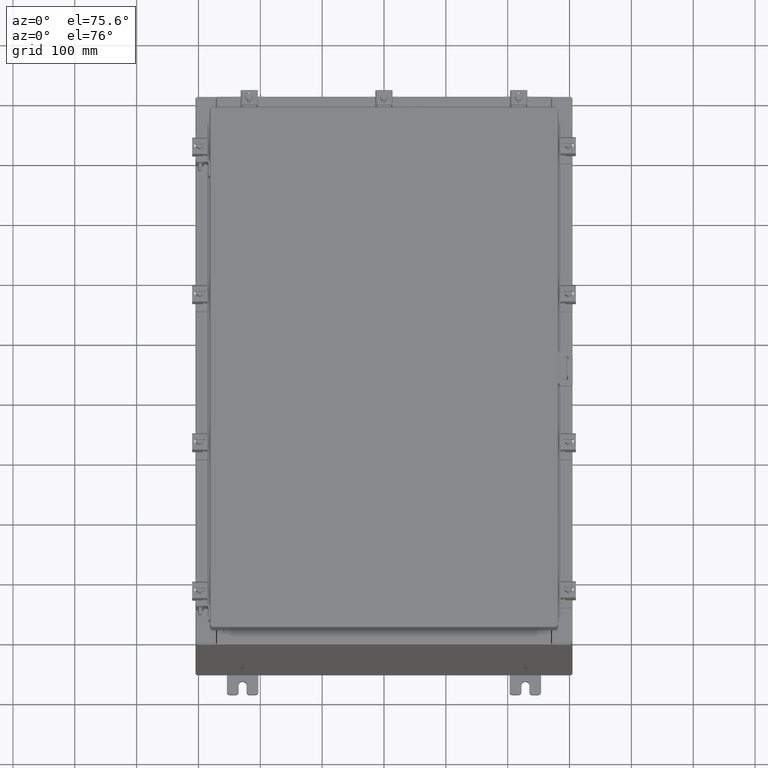
[diagram: clean part render]
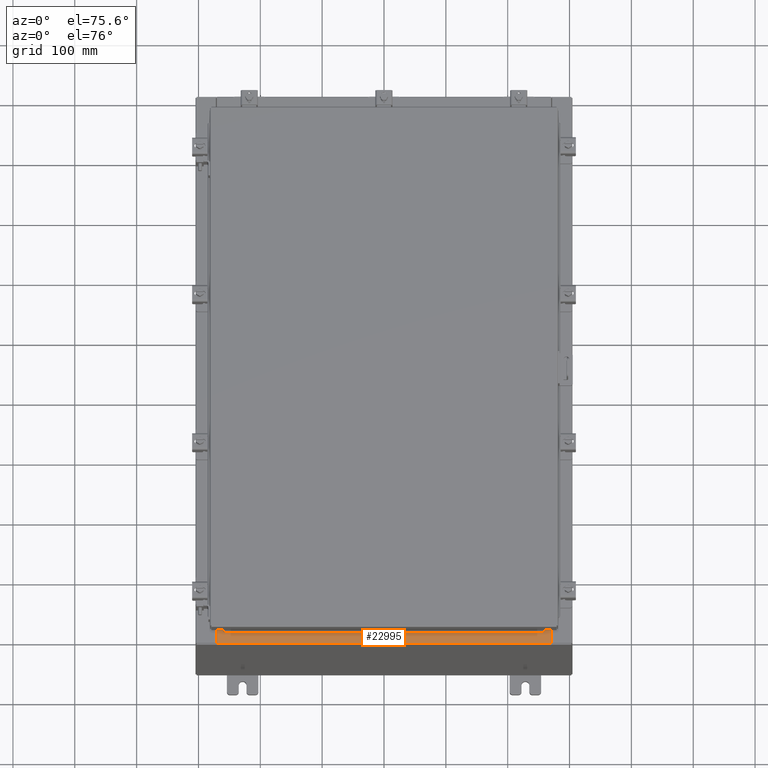
[diagram: same view with one face highlighted and labeled with its STEP entity id]
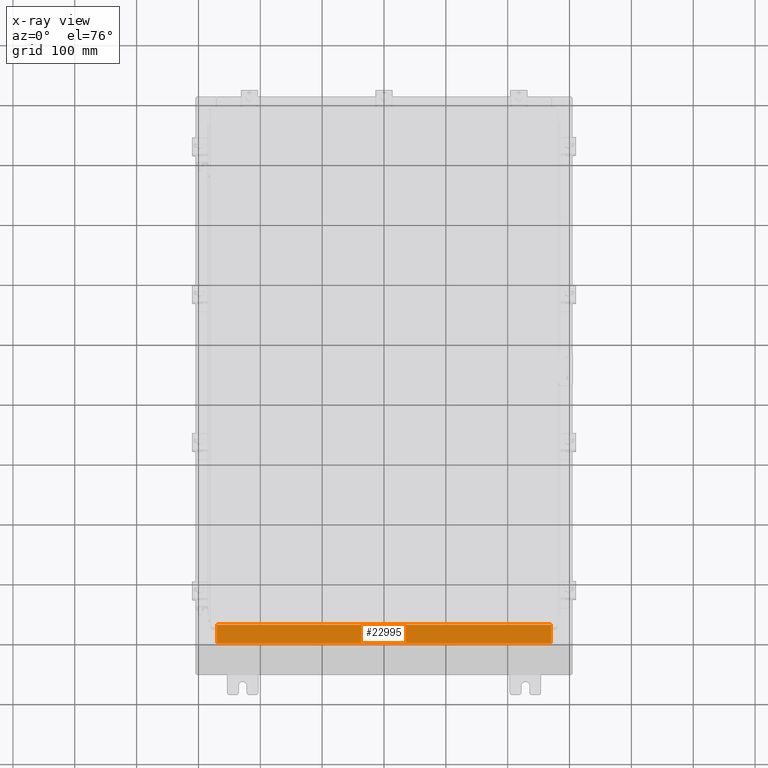
[diagram: x-ray of the same camera — body ghosted, the highlighted face saturated]
A machine part, auxiliary view. The second image highlights one B-rep face of the part: STEP entity #22995.
The next image is the same camera in x-ray: the body ghosted, the highlighted face saturated — about 0% of this face is hidden behind the body in this view.
In plain terms, the highlighted planar face has unit normal (-0, -0, 1).
Its self-contained STEP definition (entity closure, byte-faithful):
#504 = LINE ( 'NONE', #4732, #5334 ) ;
#538 = VECTOR ( 'NONE', #20040, 39.37007874015748100 ) ;
#1023 = VECTOR ( 'NONE', #11172, 39.37007874015748100 ) ;
#1081 = EDGE_LOOP ( 'NONE', ( #17147, #3478, #7113, #16179 ) ) ;
#3175 = DIRECTION ( 'NONE',  ( -0.0000000000000000000, 1.000000000000000000, -3.566381192773190000E-015 ) ) ;
#3478 = ORIENTED_EDGE ( 'NONE', *, *, #19735, .F. ) ;
#3957 = EDGE_CURVE ( 'NONE', #9216, #19446, #14334, .T. ) ;
#4445 = CARTESIAN_POINT ( 'NONE',  ( 0.0000000000000000000, 1.425992975200418500E-014, 4.000000000000000000 ) ) ;
#4524 = DIRECTION ( 'NONE',  ( 0.0000000000000000000, -1.000000000000000000, 3.566381192773190000E-015 ) ) ;
#4589 = AXIS2_PLACEMENT_3D ( 'NONE', #4445, #15283, #4524 ) ;
#4732 = CARTESIAN_POINT ( 'NONE',  ( 10.63720000000000400, -1.287299999999999900, 4.000000000000003600 ) ) ;
#5334 = VECTOR ( 'NONE', #22618, 39.37007874015748100 ) ;
#5708 = CARTESIAN_POINT ( 'NONE',  ( -10.63720000000000200, -0.08770000000000000000, 4.000000000000000000 ) ) ;
#6228 = CARTESIAN_POINT ( 'NONE',  ( 10.63720000000000200, -1.300299999999999800, 4.000000000000004400 ) ) ;
#7113 = ORIENTED_EDGE ( 'NONE', *, *, #3957, .F. ) ;
#8544 = CARTESIAN_POINT ( 'NONE',  ( -10.63720000000000200, -1.287299999999999200, 4.000000000000004400 ) ) ;
#9216 = VERTEX_POINT ( 'NONE', #10235 ) ;
#9361 = CARTESIAN_POINT ( 'NONE',  ( -2.252313287748606700E-018, -0.08770000000000000000, 4.000000000000000900 ) ) ;
#10235 = CARTESIAN_POINT ( 'NONE',  ( 10.63720000000000400, -0.08769999999999965300, 4.000000000000000000 ) ) ;
#11172 = DIRECTION ( 'NONE',  ( -1.000000000000000000, 2.568202152506545800E-017, -9.159187855938968600E-032 ) ) ;
#12125 = CARTESIAN_POINT ( 'NONE',  ( -10.63720000000000200, -0.07469999999999973900, 4.000000000000000000 ) ) ;
#14265 = VERTEX_POINT ( 'NONE', #8544 ) ;
#14269 = EDGE_CURVE ( 'NONE', #14265, #16135, #20344, .T. ) ;
#14334 = LINE ( 'NONE', #6228, #538 ) ;
#15038 = FACE_OUTER_BOUND ( 'NONE', #1081, .T. ) ;
#15283 = DIRECTION ( 'NONE',  ( 0.0000000000000000000, 3.566381192773190000E-015, 1.000000000000000000 ) ) ;
#15357 = LINE ( 'NONE', #9361, #1023 ) ;
#15572 = VECTOR ( 'NONE', #3175, 39.37007874015748100 ) ;
#16135 = VERTEX_POINT ( 'NONE', #5708 ) ;
#16179 = ORIENTED_EDGE ( 'NONE', *, *, #22183, .T. ) ;
#17147 = ORIENTED_EDGE ( 'NONE', *, *, #14269, .F. ) ;
#19446 = VERTEX_POINT ( 'NONE', #21932 ) ;
#19735 = EDGE_CURVE ( 'NONE', #19446, #14265, #504, .T. ) ;
#20040 = DIRECTION ( 'NONE',  ( -0.0000000000000000000, -1.000000000000000000, 3.566381192773190000E-015 ) ) ;
#20344 = LINE ( 'NONE', #12125, #15572 ) ;
#21932 = CARTESIAN_POINT ( 'NONE',  ( 10.63720000000000200, -1.287299999999999900, 4.000000000000004400 ) ) ;
#22183 = EDGE_CURVE ( 'NONE', #9216, #16135, #15357, .T. ) ;
#22433 = PLANE ( 'NONE',  #4589 ) ;
#22618 = DIRECTION ( 'NONE',  ( -1.000000000000000000, 0.0000000000000000000, 0.0000000000000000000 ) ) ;
#22995 = ADVANCED_FACE ( 'NONE', ( #15038 ), #22433, .T. ) ;